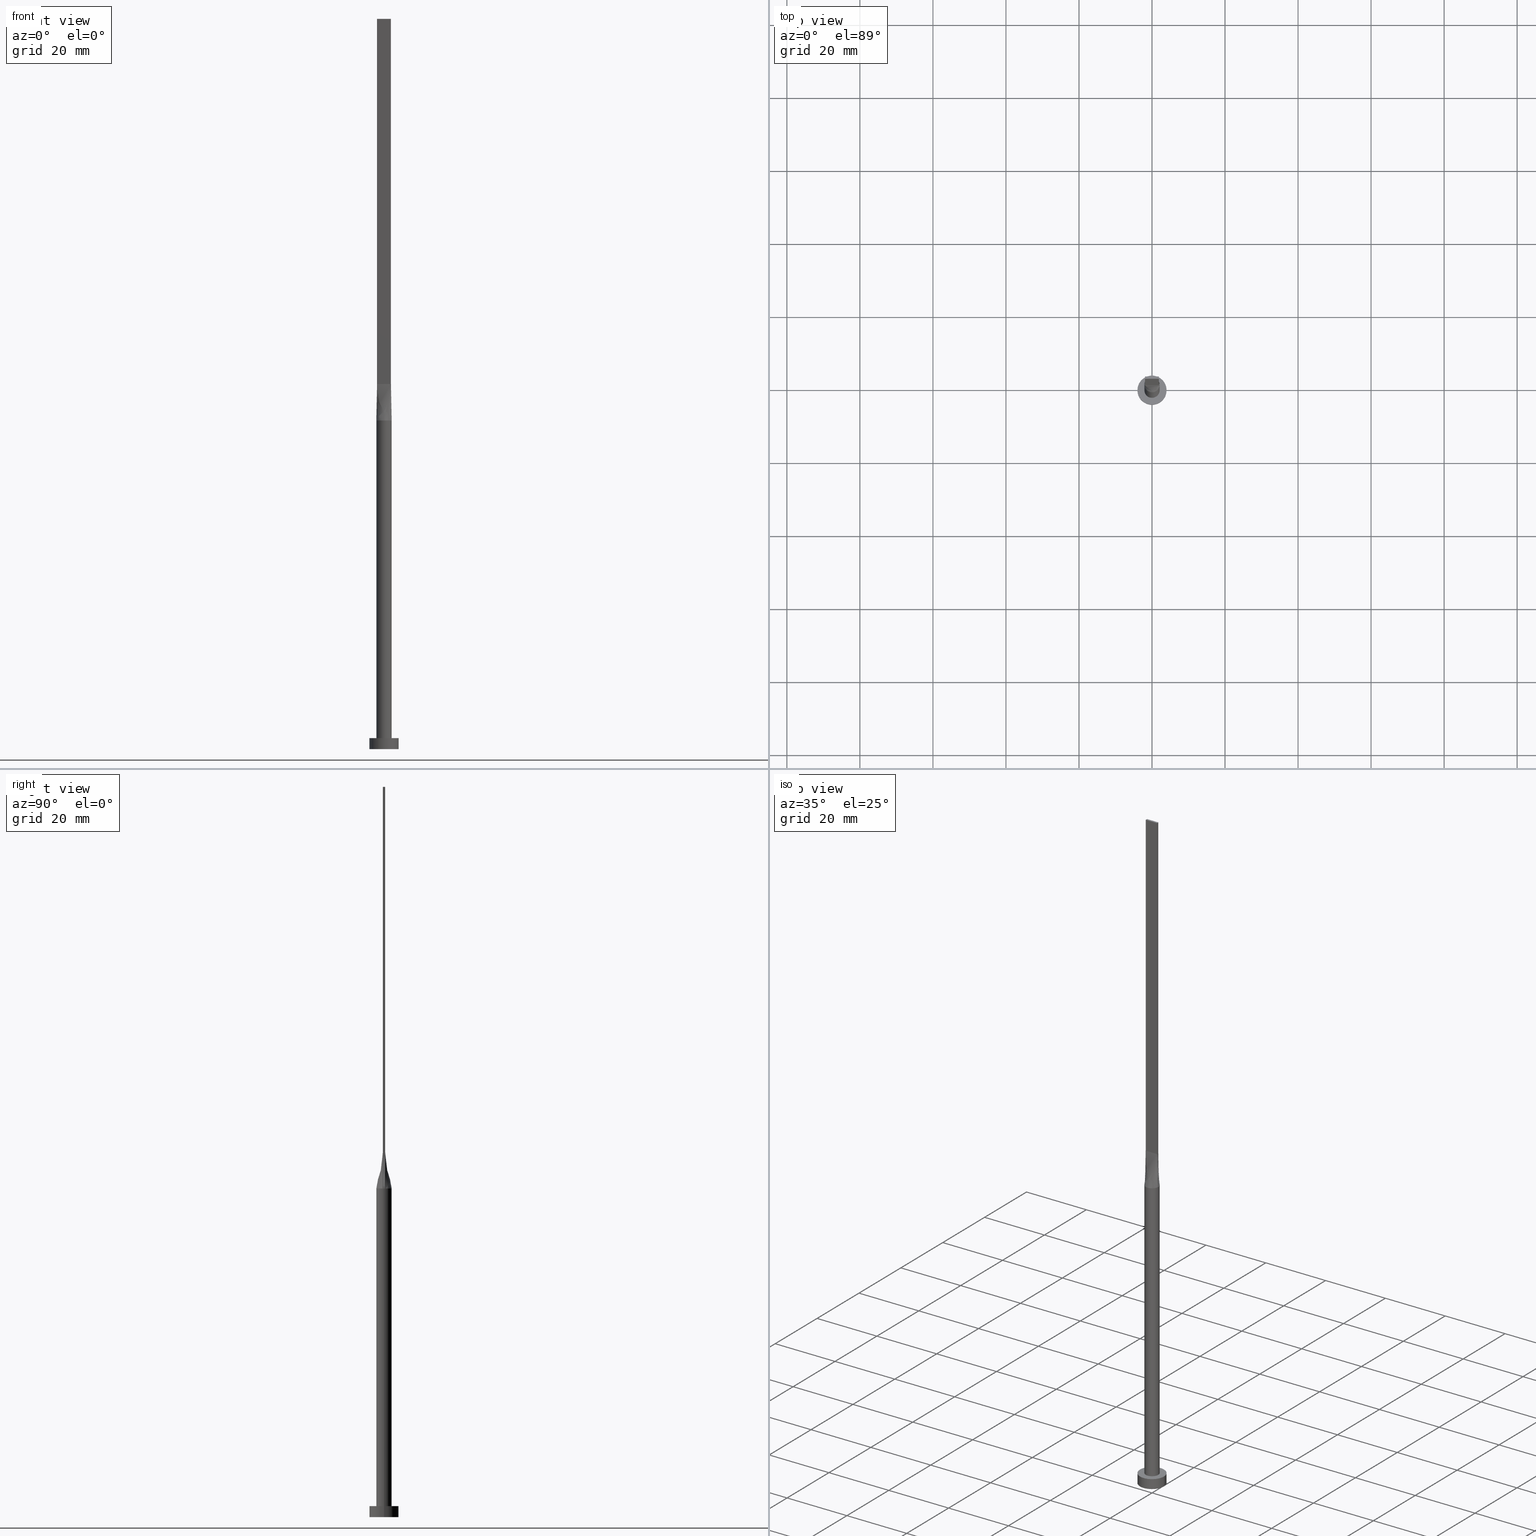
[diagram: canonical four-view strip — front | top / right | iso, engineering-drawing reading convention]
A machine part, canonical four-view strip (front | top / right | iso — engineering-drawing reading convention). The complete STEP part file that produces these views, byte-faithful:
ISO-10303-21;
HEADER;
FILE_DESCRIPTION (( 'STEP AP203' ),
    '1' );
FILE_NAME ('77c5.STEP',
    '2026-02-12T09:04:34',
    ( '' ),
    ( '' ),
    'SwSTEP 2.0',
    'SolidWorks 2019',
    '' );
FILE_SCHEMA (( 'CONFIG_CONTROL_DESIGN' ));
ENDSEC;

DATA;
#1 = ORIENTED_EDGE ( 'NONE', *, *, #242, .F. ) ;
#2 = CARTESIAN_POINT ( 'NONE',  ( 1.819451111325471215, 1.069832718648841885, 89.99999999999994316 ) ) ;
#3 = CARTESIAN_POINT ( 'NONE',  ( 2.074302227191044956, -0.3275214042933231595, 90.00000000000000000 ) ) ;
#4 = DIRECTION ( 'NONE',  ( -1.084202172485504434E-15, -1.000000000000000000, 0.000000000000000000 ) ) ;
#5 = CARTESIAN_POINT ( 'NONE',  ( 1.692271541701912962, -1.268928319070363520, 90.00000000000005684 ) ) ;
#6 = VECTOR ( 'NONE', #418, 1000.000000000000000 ) ;
#7 = ORIENTED_EDGE ( 'NONE', *, *, #17, .T. ) ;
#8 = CARTESIAN_POINT ( 'NONE',  ( -1.996565546919327971, -0.6845950695482642123, 90.00000000000000000 ) ) ;
#9 = B_SPLINE_SURFACE_WITH_KNOTS ( 'NONE', 3, 1, ( 
 ( #416, #59 ),
 ( #321, #230 ),
 ( #103, #378 ),
 ( #511, #192 ),
 ( #147, #317 ),
 ( #154, #563 ) ),
 .UNSPECIFIED., .F., .F., .F.,
 ( 4, 2, 4 ),
 ( 2, 2 ),
 ( 0.000000000000000000, 0.5000000000000000000, 1.000000000000000000 ),
 ( 0.000000000000000000, 1.000000000000000000 ),
 .UNSPECIFIED. ) ;
#10 = EDGE_CURVE ( 'NONE', #175, #480, #168, .T. ) ;
#11 = ORIENTED_EDGE ( 'NONE', *, *, #145, .T. ) ;
#12 = ORIENTED_EDGE ( 'NONE', *, *, #351, .F. ) ;
#13 = ORIENTED_EDGE ( 'NONE', *, *, #504, .F. ) ;
#14 = APPLICATION_PROTOCOL_DEFINITION ( 'international standard', 'config_control_design', 1994, #232 ) ;
#15 = VECTOR ( 'NONE', #236, 1000.000000000000000 ) ;
#16 = CARTESIAN_POINT ( 'NONE',  ( 0.5970064165420508884, 2.033566071616262683, 89.99999999999997158 ) ) ;
#17 = EDGE_CURVE ( 'NONE', #91, #175, #66, .T. ) ;
#18 = DIRECTION ( 'NONE',  ( -0.000000000000000000, -0.000000000000000000, -1.000000000000000000 ) ) ;
#19 = ORIENTED_EDGE ( 'NONE', *, *, #417, .F. ) ;
#20 = DIRECTION ( 'NONE',  ( 1.000000000000000000, 0.000000000000000000, -0.000000000000000000 ) ) ;
#21 = AXIS2_PLACEMENT_3D ( 'NONE', #117, #432, #74 ) ;
#22 = EDGE_CURVE ( 'NONE', #480, #569, #202, .T. ) ;
#23 = FACE_OUTER_BOUND ( 'NONE', #390, .T. ) ;
#24 = CARTESIAN_POINT ( 'NONE',  ( -4.000000000000000000, 0.000000000000000000, 3.000000000000000000 ) ) ;
#25 = ORIENTED_EDGE ( 'NONE', *, *, #234, .F. ) ;
#26 = PERSON_AND_ORGANIZATION ( #55, #421 ) ;
#27 = DIRECTION ( 'NONE',  ( 0.000000000000000000, -0.000000000000000000, -1.000000000000000000 ) ) ;
#28 = CARTESIAN_POINT ( 'NONE',  ( -1.819451111325472326, 1.069832718648841885, 90.00000000000000000 ) ) ;
#29 = CIRCLE ( 'NONE', #355, 2.100000000000000089 ) ;
#30 = PERSON_AND_ORGANIZATION ( #55, #421 ) ;
#31 = ORIENTED_EDGE ( 'NONE', *, *, #357, .T. ) ;
#32 = APPROVAL_DATE_TIME ( #433, #550 ) ;
#33 = UNCERTAINTY_MEASURE_WITH_UNIT (LENGTH_MEASURE( 1.000000000000000082E-05 ), #248, 'distance_accuracy_value', 'NONE');
#34 = DIRECTION ( 'NONE',  ( -0.01742750958084841525, -0.002751712039081281522, 0.9998443428807622935 ) ) ;
#35 = DIRECTION ( 'NONE',  ( -0.000000000000000000, -0.000000000000000000, -1.000000000000000000 ) ) ;
#36 = ORIENTED_EDGE ( 'NONE', *, *, #141, .T. ) ;
#37 = DIRECTION ( 'NONE',  ( -1.000000000000000000, 0.000000000000000000, 0.000000000000000000 ) ) ;
#38 = VECTOR ( 'NONE', #207, 1000.000000000000000 ) ;
#39 = CARTESIAN_POINT ( 'NONE',  ( -1.899999999999999911, -0.2999999999999994893, 200.0000000000000000 ) ) ;
#40 = EDGE_CURVE ( 'NONE', #301, #91, #194, .T. ) ;
#41 = VERTEX_POINT ( 'NONE', #238 ) ;
#42 = CARTESIAN_POINT ( 'NONE',  ( -2.100000000000000089, 0.000000000000000000, 3.000000000000000000 ) ) ;
#43 = CARTESIAN_POINT ( 'NONE',  ( -0.1583333333333324378, -0.2999999999999996003, 99.99999999999997158 ) ) ;
#44 = CARTESIAN_POINT ( 'NONE',  ( 0.000000000000000000, 0.000000000000000000, 90.00000000000000000 ) ) ;
#45 = DIRECTION ( 'NONE',  ( 1.084202172485504434E-15, 1.000000000000000000, 0.000000000000000000 ) ) ;
#46 = EDGE_CURVE ( 'NONE', #509, #480, #290, .T. ) ;
#47 = AXIS2_PLACEMENT_3D ( 'NONE', #510, #102, #553 ) ;
#48 = CARTESIAN_POINT ( 'NONE',  ( -1.996565546919327527, 0.6845950695482648785, 90.00000000000002842 ) ) ;
#49 = CARTESIAN_POINT ( 'NONE',  ( 0.1583333333333341031, -0.2999999999999996003, 99.99999999999997158 ) ) ;
#50 = CARTESIAN_POINT ( 'NONE',  ( -0.2990728642939458615, 2.100000000000000089, 90.00000000000001421 ) ) ;
#51 = ORIENTED_EDGE ( 'NONE', *, *, #302, .F. ) ;
#52 = CARTESIAN_POINT ( 'NONE',  ( -2.047342767731585855, 0.4982646475365663519, 90.00000000000000000 ) ) ;
#53 = CARTESIAN_POINT ( 'NONE',  ( -1.342614810400549308, 1.634425746458370021, 90.00000000000002842 ) ) ;
#54 = CC_DESIGN_PERSON_AND_ORGANIZATION_ASSIGNMENT ( #570, #152, ( #411 ) ) ;
#55 = PERSON ( 'NEUR�EN�', 'NEUR�EN�', 'NEUR�EN�', ('NEUR�EN�'), ('NEUR�EN�'), ('NEUR�EN�') ) ;
#56 = CIRCLE ( 'NONE', #564, 2.100000000000000089 ) ;
#57 = DIRECTION ( 'NONE',  ( 1.000000000000000000, 0.000000000000000000, 0.000000000000000000 ) ) ;
#58 = CC_DESIGN_PERSON_AND_ORGANIZATION_ASSIGNMENT ( #565, #519, ( #118 ) ) ;
#59 = CARTESIAN_POINT ( 'NONE',  ( -1.899999999999999689, 0.3000000000000002109, 99.99999999999998579 ) ) ;
#60 = CARTESIAN_POINT ( 'NONE',  ( 2.100000000000000089, 2.571758278209441957E-16, 3.000000000000000000 ) ) ;
#61 = CARTESIAN_POINT ( 'NONE',  ( 0.2990728642939458615, 2.100000000000000089, 90.00000000000002842 ) ) ;
#62 = COORDINATED_UNIVERSAL_TIME_OFFSET ( 1, 0, .AHEAD. ) ;
#63 = EDGE_CURVE ( 'NONE', #311, #288, #158, .T. ) ;
#64 = ORIENTED_EDGE ( 'NONE', *, *, #488, .T. ) ;
#65 = PERSON_AND_ORGANIZATION ( #55, #421 ) ;
#66 = LINE ( 'NONE', #392, #251 ) ;
#67 = ORIENTED_EDGE ( 'NONE', *, *, #504, .T. ) ;
#68 = CLOSED_SHELL ( 'NONE', ( #470, #446, #435, #187, #372, #191, #404, #131, #335, #513, #520, #278, #482, #268, #533 ) ) ;
#69 = FACE_OUTER_BOUND ( 'NONE', #121, .T. ) ;
#70 = APPLICATION_PROTOCOL_DEFINITION ( 'international standard', 'config_control_design', 1994, #99 ) ;
#71 = ORIENTED_EDGE ( 'NONE', *, *, #210, .T. ) ;
#72 = CARTESIAN_POINT ( 'NONE',  ( 0.000000000000000000, 0.000000000000000000, 90.00000000000000000 ) ) ;
#73 = APPROVAL_STATUS ( 'not_yet_approved' ) ;
#74 = DIRECTION ( 'NONE',  ( -1.000000000000000000, 0.000000000000000000, 0.000000000000000000 ) ) ;
#75 = EDGE_CURVE ( 'NONE', #521, #385, #114, .T. ) ;
#76 = EDGE_LOOP ( 'NONE', ( #499, #184, #426, #305 ) ) ;
#77 = CIRCLE ( 'NONE', #256, 2.100000000000000089 ) ;
#78 = DIRECTION ( 'NONE',  ( 1.000000000000000000, 0.000000000000000000, 0.000000000000000000 ) ) ;
#79 = ORIENTED_EDGE ( 'NONE', *, *, #325, .T. ) ;
#80 = CARTESIAN_POINT ( 'NONE',  ( 0.2990728642939452508, -2.100000000000000533, 90.00000000000002842 ) ) ;
#81 = DIRECTION ( 'NONE',  ( 1.000000000000000000, 0.000000000000000000, 0.000000000000000000 ) ) ;
#82 = EDGE_LOOP ( 'NONE', ( #457, #374, #79, #324 ) ) ;
#83 = EDGE_CURVE ( 'NONE', #115, #480, #430, .T. ) ;
#84 = CARTESIAN_POINT ( 'NONE',  ( 2.074492141291045755, -0.3275508996892426139, 90.00000000000000000 ) ) ;
#85 = ORIENTED_EDGE ( 'NONE', *, *, #257, .F. ) ;
#86 = CARTESIAN_POINT ( 'NONE',  ( -0.3166666666666658192, -0.2999999999999996003, 99.99999999999997158 ) ) ;
#87 = DIRECTION ( 'NONE',  ( 1.000000000000000000, 0.000000000000000000, 0.000000000000000000 ) ) ;
#88 = CARTESIAN_POINT ( 'NONE',  ( 0.2990728642939458615, 2.100000000000000089, 90.00000000000002842 ) ) ;
#89 = CARTESIAN_POINT ( 'NONE',  ( 1.119115561862284114, -1.799829988698610883, 89.99999999999997158 ) ) ;
#90 = CARTESIAN_POINT ( 'NONE',  ( -1.119115561862284558, 1.799829988698611327, 89.99999999999997158 ) ) ;
#91 = VERTEX_POINT ( 'NONE', #436 ) ;
#92 = VERTEX_POINT ( 'NONE', #484 ) ;
#93 = VECTOR ( 'NONE', #208, 1000.000000000000000 ) ;
#94 = CYLINDRICAL_SURFACE ( 'NONE', #512, 2.100000000000000089 ) ;
#95 = AXIS2_PLACEMENT_3D ( 'NONE', #263, #333, #27 ) ;
#96 = PLANE ( 'NONE',  #429 ) ;
#97 = CARTESIAN_POINT ( 'NONE',  ( 2.074471112824316510, 0.3275477247839024275, 90.00000000000000000 ) ) ;
#98 = EDGE_CURVE ( 'NONE', #453, #175, #424, .T. ) ;
#99 = APPLICATION_CONTEXT ( 'configuration controlled 3d designs of mechanical parts and assemblies' ) ;
#100 = DIRECTION ( 'NONE',  ( 0.000000000000000000, 0.000000000000000000, 1.000000000000000000 ) ) ;
#101 = CARTESIAN_POINT ( 'NONE',  ( -1.987151113595522656, -0.3137607021466609636, 95.00000000000000000 ) ) ;
#102 = DIRECTION ( 'NONE',  ( 0.000000000000000000, 0.000000000000000000, 1.000000000000000000 ) ) ;
#103 = CARTESIAN_POINT ( 'NONE',  ( -2.099842767731585624, 0.1098417832277427397, 90.00000000000000000 ) ) ;
#104 = FACE_OUTER_BOUND ( 'NONE', #189, .T. ) ;
#105 = VECTOR ( 'NONE', #45, 1000.000000000000000 ) ;
#106 = COORDINATED_UNIVERSAL_TIME_OFFSET ( 1, 0, .AHEAD. ) ;
#107 = CC_DESIGN_PERSON_AND_ORGANIZATION_ASSIGNMENT ( #26, #119, ( #319 ) ) ;
#108 = ORIENTED_EDGE ( 'NONE', *, *, #234, .T. ) ;
#109 = DIRECTION ( 'NONE',  ( 1.000000000000000000, 0.000000000000000000, -0.000000000000000000 ) ) ;
#110 = CARTESIAN_POINT ( 'NONE',  ( 2.047342767731584967, 0.4982646475365660188, 90.00000000000000000 ) ) ;
#111 = CARTESIAN_POINT ( 'NONE',  ( -2.074476228699557279, 0.3275484103472254827, 90.00000000000000000 ) ) ;
#112 = DIRECTION ( 'NONE',  ( 0.000000000000000000, 0.000000000000000000, 1.000000000000000000 ) ) ;
#113 = PERSON_AND_ORGANIZATION ( #55, #421 ) ;
#114 = LINE ( 'NONE', #39, #406 ) ;
#115 = VERTEX_POINT ( 'NONE', #111 ) ;
#116 = VECTOR ( 'NONE', #35, 1000.000000000000000 ) ;
#117 = CARTESIAN_POINT ( 'NONE',  ( 0.000000000000000000, 0.000000000000000000, 3.000000000000000000 ) ) ;
#118 = PRODUCT_DEFINITION_FORMATION_WITH_SPECIFIED_SOURCE ( 'LIBOVOLN�', '', #342, .NOT_KNOWN. ) ;
#119 = PERSON_AND_ORGANIZATION_ROLE ( 'classification_officer' ) ;
#120 = DIRECTION ( 'NONE',  ( 0.01742750958084841525, -0.002751712039081265042, 0.9998443428807622935 ) ) ;
#121 = EDGE_LOOP ( 'NONE', ( #197, #343, #67, #136, #85, #1 ) ) ;
#122 = CARTESIAN_POINT ( 'NONE',  ( -1.899999999999999911, -0.2999999999999994893, 200.0000000000000000 ) ) ;
#123 = CC_DESIGN_DATE_AND_TIME_ASSIGNMENT ( #345, #246, ( #319 ) ) ;
#124 = ORIENTED_EDGE ( 'NONE', *, *, #561, .T. ) ;
#125 = LINE ( 'NONE', #24, #383 ) ;
#126 = EDGE_LOOP ( 'NONE', ( #487, #261, #182, #284 ) ) ;
#127 = CARTESIAN_POINT ( 'NONE',  ( -1.583333333333333037, -0.2999999999999994893, 99.99999999999998579 ) ) ;
#128 = CARTESIAN_POINT ( 'NONE',  ( 1.342614810400549086, 1.634425746458369799, 90.00000000000001421 ) ) ;
#129 = DIRECTION ( 'NONE',  ( 0.000000000000000000, 0.000000000000000000, 1.000000000000000000 ) ) ;
#130 = AXIS2_PLACEMENT_3D ( 'NONE', #465, #150, #57 ) ;
#131 = ADVANCED_FACE ( 'NONE', ( #276 ), #358, .T. ) ;
#132 = LINE ( 'NONE', #174, #331 ) ;
#133 = ORIENTED_EDGE ( 'NONE', *, *, #10, .F. ) ;
#134 = CARTESIAN_POINT ( 'NONE',  ( 1.819451111325472104, -1.069832718648842107, 90.00000000000000000 ) ) ;
#135 = CARTESIAN_POINT ( 'NONE',  ( 0.7916666666666666297, 0.3000000000000001554, 99.99999999999997158 ) ) ;
#136 = ORIENTED_EDGE ( 'NONE', *, *, #63, .F. ) ;
#137 = DIRECTION ( 'NONE',  ( 0.000000000000000000, 0.000000000000000000, 1.000000000000000000 ) ) ;
#138 = CIRCLE ( 'NONE', #577, 2.100000000000000089 ) ;
#139 = EDGE_LOOP ( 'NONE', ( #538, #466, #7, #398, #502 ) ) ;
#140 = FACE_OUTER_BOUND ( 'NONE', #76, .T. ) ;
#141 = EDGE_CURVE ( 'NONE', #569, #410, #226, .T. ) ;
#142 = EDGE_LOOP ( 'NONE', ( #534, #445, #485, #25, #338, #64 ) ) ;
#143 = VECTOR ( 'NONE', #559, 1000.000000000000114 ) ;
#144 = CARTESIAN_POINT ( 'NONE',  ( 1.899999999999999023, -0.2999999999999997669, 200.0000000000000000 ) ) ;
#145 = EDGE_CURVE ( 'NONE', #316, #41, #233, .T. ) ;
#146 = LOCAL_TIME ( 10, 4, 34.00000000000000000, #206 ) ;
#147 = CARTESIAN_POINT ( 'NONE',  ( -2.091329254218072364, -0.2196835664554846468, 90.00000000000000000 ) ) ;
#148 = ORIENTED_EDGE ( 'NONE', *, *, #22, .F. ) ;
#149 = DIRECTION ( 'NONE',  ( 1.000000000000000000, -7.993605777301127091E-15, 0.000000000000000000 ) ) ;
#150 = DIRECTION ( 'NONE',  ( 0.000000000000000000, 0.000000000000000000, 1.000000000000000000 ) ) ;
#151 = EDGE_CURVE ( 'NONE', #41, #558, #524, .T. ) ;
#152 = PERSON_AND_ORGANIZATION_ROLE ( 'creator' ) ;
#153 = CARTESIAN_POINT ( 'NONE',  ( 4.000000000000000000, 4.898587196589412829E-16, 3.000000000000000000 ) ) ;
#154 = CARTESIAN_POINT ( 'NONE',  ( -2.074302227191044956, -0.3275214042933223824, 90.00000000000000000 ) ) ;
#155 = CIRCLE ( 'NONE', #218, 4.000000000000000000 ) ;
#156 = APPROVAL_DATE_TIME ( #562, #422 ) ;
#157 = DIRECTION ( 'NONE',  ( 0.000000000000000000, 0.000000000000000000, 1.000000000000000000 ) ) ;
#158 = LINE ( 'NONE', #247, #468 ) ;
#159 = ORIENTED_EDGE ( 'NONE', *, *, #141, .F. ) ;
#160 = DIRECTION ( 'NONE',  ( -0.000000000000000000, -0.000000000000000000, -1.000000000000000000 ) ) ;
#161 = CALENDAR_DATE ( 2026, 12, 2 ) ;
#162 = CARTESIAN_POINT ( 'NONE',  ( -1.899999999999999911, -0.2999999999999994893, 200.0000000000000000 ) ) ;
#163 = ORIENTED_EDGE ( 'NONE', *, *, #210, .F. ) ;
#164 = CARTESIAN_POINT ( 'NONE',  ( -1.899999999999999911, -0.2999999999999994893, 99.99999999999998579 ) ) ;
#165 = FACE_OUTER_BOUND ( 'NONE', #476, .T. ) ;
#166 = CALENDAR_DATE ( 2026, 12, 2 ) ;
#167 =( NAMED_UNIT ( * ) SI_UNIT ( $, .STERADIAN. ) SOLID_ANGLE_UNIT ( ) );
#168 = LINE ( 'NONE', #530, #38 ) ;
#169 = CC_DESIGN_PERSON_AND_ORGANIZATION_ASSIGNMENT ( #243, #514, ( #342 ) ) ;
#170 = AXIS2_PLACEMENT_3D ( 'NONE', #375, #193, #149 ) ;
#171 = CC_DESIGN_APPROVAL ( #550, ( #411 ) ) ;
#172 = CARTESIAN_POINT ( 'NONE',  ( 2.091329254218072364, -0.2196835664554854239, 90.00000000000000000 ) ) ;
#173 = CARTESIAN_POINT ( 'NONE',  ( 0.000000000000000000, 0.000000000000000000, 3.000000000000000000 ) ) ;
#174 = CARTESIAN_POINT ( 'NONE',  ( -1.899999999999999689, 0.3000000000000002109, 200.0000000000000000 ) ) ;
#175 = VERTEX_POINT ( 'NONE', #303 ) ;
#176 = CARTESIAN_POINT ( 'NONE',  ( 1.692271541701912296, 1.268928319070362187, 89.99999999999998579 ) ) ;
#177 = DIRECTION ( 'NONE',  ( 3.614007241618350250E-16, 1.000000000000000000, 0.000000000000000000 ) ) ;
#178 = EDGE_LOOP ( 'NONE', ( #579, #255, #163, #267 ) ) ;
#179 = CARTESIAN_POINT ( 'NONE',  ( 1.108333333333332948, -0.2999999999999996558, 99.99999999999998579 ) ) ;
#180 = APPROVAL_PERSON_ORGANIZATION ( #65, #214, #329 ) ;
#181 = PLANE ( 'NONE',  #414 ) ;
#182 = ORIENTED_EDGE ( 'NONE', *, *, #249, .F. ) ;
#183 = CARTESIAN_POINT ( 'NONE',  ( 1.583333333333333037, 0.3000000000000002109, 99.99999999999997158 ) ) ;
#184 = ORIENTED_EDGE ( 'NONE', *, *, #46, .F. ) ;
#185 = CARTESIAN_POINT ( 'NONE',  ( -1.108333333333333171, 0.3000000000000002109, 99.99999999999997158 ) ) ;
#186 = CARTESIAN_POINT ( 'NONE',  ( -1.741666666666666474, 0.3000000000000002109, 99.99999999999998579 ) ) ;
#187 = ADVANCED_FACE ( 'NONE', ( #403, #220 ), #356, .T. ) ;
#188 = AXIS2_PLACEMENT_3D ( 'NONE', #173, #160, #37 ) ;
#189 = EDGE_LOOP ( 'NONE', ( #576, #292, #133, #547 ) ) ;
#190 = CARTESIAN_POINT ( 'NONE',  ( 0.000000000000000000, 0.000000000000000000, 0.000000000000000000 ) ) ;
#191 = ADVANCED_FACE ( 'NONE', ( #307 ), #94, .T. ) ;
#192 = CARTESIAN_POINT ( 'NONE',  ( -1.899999999999999689, -0.09999999999999924227, 99.99999999999997158 ) ) ;
#193 = DIRECTION ( 'NONE',  ( 0.000000000000000000, 0.000000000000000000, 1.000000000000000000 ) ) ;
#194 = CIRCLE ( 'NONE', #496, 2.100000000000000089 ) ;
#195 = LOCAL_TIME ( 10, 4, 34.00000000000000000, #106 ) ;
#196 = LINE ( 'NONE', #225, #555 ) ;
#197 = ORIENTED_EDGE ( 'NONE', *, *, #40, .F. ) ;
#198 = DIRECTION ( 'NONE',  ( 0.000000000000000000, 0.000000000000000000, 1.000000000000000000 ) ) ;
#199 = PERSON_AND_ORGANIZATION ( #55, #421 ) ;
#200 = FACE_OUTER_BOUND ( 'NONE', #294, .T. ) ;
#201 = DIRECTION ( 'NONE',  ( -1.000000000000000000, 0.000000000000000000, 0.000000000000000000 ) ) ;
#202 = LINE ( 'NONE', #341, #15 ) ;
#203 = AXIS2_PLACEMENT_3D ( 'NONE', #382, #567, #229 ) ;
#204 = CARTESIAN_POINT ( 'NONE',  ( -1.996565546919327527, 0.6845950695482648785, 90.00000000000002842 ) ) ;
#205 = VERTEX_POINT ( 'NONE', #215 ) ;
#206 = COORDINATED_UNIVERSAL_TIME_OFFSET ( 1, 0, .AHEAD. ) ;
#207 = DIRECTION ( 'NONE',  ( -1.000000000000000000, -0.000000000000000000, -0.000000000000000000 ) ) ;
#208 = DIRECTION ( 'NONE',  ( -0.000000000000000000, -0.000000000000000000, -1.000000000000000000 ) ) ;
#209 = SECURITY_CLASSIFICATION_LEVEL ( 'unclassified' ) ;
#210 = EDGE_CURVE ( 'NONE', #385, #453, #554, .T. ) ;
#211 = CARTESIAN_POINT ( 'NONE',  ( 2.099842767731585624, 0.1098417832277423373, 90.00000000000000000 ) ) ;
#212 = DIRECTION ( 'NONE',  ( -0.000000000000000000, -0.000000000000000000, -1.000000000000000000 ) ) ;
#213 = CARTESIAN_POINT ( 'NONE',  ( 1.899999999999999689, 0.3000000000000002109, 200.0000000000000000 ) ) ;
#214 = APPROVAL ( #483, 'NEUR�EN�' ) ;
#215 = CARTESIAN_POINT ( 'NONE',  ( 1.899999999999999023, -0.2999999999999997669, 99.99999999999998579 ) ) ;
#216 = CARTESIAN_POINT ( 'NONE',  ( 2.099921383865792635, 5.174786140116233847E-16, 90.00000000000000000 ) ) ;
#217 = DIRECTION ( 'NONE',  ( -3.614007241618350250E-16, -1.000000000000000000, 0.000000000000000000 ) ) ;
#218 = AXIS2_PLACEMENT_3D ( 'NONE', #190, #198, #560 ) ;
#219 = CARTESIAN_POINT ( 'NONE',  ( -1.741666666666666474, -0.2999999999999994893, 99.99999999999998579 ) ) ;
#220 = FACE_OUTER_BOUND ( 'NONE', #271, .T. ) ;
#221 = CC_DESIGN_DATE_AND_TIME_ASSIGNMENT ( #340, #235, ( #411 ) ) ;
#222 = CARTESIAN_POINT ( 'NONE',  ( -0.7916666666666664076, 0.3000000000000002109, 99.99999999999998579 ) ) ;
#223 = EDGE_LOOP ( 'NONE', ( #12, #527 ) ) ;
#224 = VECTOR ( 'NONE', #120, 1000.000000000000114 ) ;
#225 = CARTESIAN_POINT ( 'NONE',  ( 1.899999999999999689, 0.3000000000000002109, 99.99999999999998579 ) ) ;
#226 = LINE ( 'NONE', #101, #143 ) ;
#227 = LINE ( 'NONE', #366, #6 ) ;
#228 = DESIGN_CONTEXT ( 'detailed design', #99, 'design' ) ;
#229 = DIRECTION ( 'NONE',  ( -1.000000000000000000, 7.132909029509899409E-17, 0.000000000000000000 ) ) ;
#230 = CARTESIAN_POINT ( 'NONE',  ( -1.899999999999999467, 0.2000000000000004552, 99.99999999999997158 ) ) ;
#231 = B_SPLINE_CURVE_WITH_KNOTS ( 'NONE', 3,
 ( #97, #400, #492, #2, #176, #128, #296, #471, #61, #515, #274, #240, #431, #425, #28, #204, #337, #297 ),
 .UNSPECIFIED., .F., .F.,
 ( 4, 2, 2, 2, 2, 2, 2, 2, 4 ),
 ( 0.000000000000000000, 0.1249999999999999722, 0.2500000000000000000, 0.3750000000000000000, 0.5000000000000000000, 0.6250000000000000000, 0.7500000000000000000, 0.8750000000000000000, 1.000000000000000000 ),
 .UNSPECIFIED. ) ;
#232 = APPLICATION_CONTEXT ( 'configuration controlled 3d designs of mechanical parts and assemblies' ) ;
#233 = LINE ( 'NONE', #153, #479 ) ;
#234 = EDGE_CURVE ( 'NONE', #311, #410, #56, .T. ) ;
#235 = DATE_TIME_ROLE ( 'creation_date' ) ;
#236 = DIRECTION ( 'NONE',  ( -3.614007241618350250E-16, -1.000000000000000000, 0.000000000000000000 ) ) ;
#237 = CARTESIAN_POINT ( 'NONE',  ( -1.899999999999999689, 0.3000000000000002109, 99.99999999999998579 ) ) ;
#238 = CARTESIAN_POINT ( 'NONE',  ( 4.000000000000000000, 4.898587196589412829E-16, 0.000000000000000000 ) ) ;
#239 = APPROVAL_PERSON_ORGANIZATION ( #30, #550, #478 ) ;
#240 = CARTESIAN_POINT ( 'NONE',  ( -1.119115561862284558, 1.799829988698611327, 89.99999999999997158 ) ) ;
#241 = CARTESIAN_POINT ( 'NONE',  ( 1.996565546919328415, -0.6845950695482654336, 90.00000000000001421 ) ) ;
#242 = EDGE_CURVE ( 'NONE', #91, #115, #231, .T. ) ;
#243 = PERSON_AND_ORGANIZATION ( #55, #421 ) ;
#244 = CARTESIAN_POINT ( 'NONE',  ( 2.099842767731585624, -0.1098417832277428230, 90.00000000000000000 ) ) ;
#245 = DIRECTION ( 'NONE',  ( -0.000000000000000000, -0.000000000000000000, -1.000000000000000000 ) ) ;
#246 = DATE_TIME_ROLE ( 'classification_date' ) ;
#247 = CARTESIAN_POINT ( 'NONE',  ( -2.100000000000000089, 0.000000000000000000, 90.00000000000000000 ) ) ;
#248 =( LENGTH_UNIT ( ) NAMED_UNIT ( * ) SI_UNIT ( .MILLI., .METRE. ) );
#249 = EDGE_CURVE ( 'NONE', #509, #521, #132, .T. ) ;
#250 = EDGE_LOOP ( 'NONE', ( #419, #108, #159, #148, #262 ) ) ;
#251 = VECTOR ( 'NONE', #34, 1000.000000000000114 ) ;
#252 = CARTESIAN_POINT ( 'NONE',  ( 1.899999999999999023, -0.2999999999999997669, 200.0000000000000000 ) ) ;
#253 = CARTESIAN_POINT ( 'NONE',  ( -1.819451111325472326, 1.069832718648841885, 90.00000000000000000 ) ) ;
#254 = CARTESIAN_POINT ( 'NONE',  ( 0.1583333333333335480, 0.3000000000000001554, 99.99999999999997158 ) ) ;
#255 = ORIENTED_EDGE ( 'NONE', *, *, #98, .F. ) ;
#256 = AXIS2_PLACEMENT_3D ( 'NONE', #44, #359, #78 ) ;
#257 = EDGE_CURVE ( 'NONE', #115, #311, #77, .T. ) ;
#258 = CC_DESIGN_SECURITY_CLASSIFICATION ( #319, ( #118 ) ) ;
#259 = CARTESIAN_POINT ( 'NONE',  ( 1.342614810400548864, -1.634425746458370021, 90.00000000000001421 ) ) ;
#260 = CARTESIAN_POINT ( 'NONE',  ( 0.3166666666666668184, 0.3000000000000001554, 99.99999999999997158 ) ) ;
#261 = ORIENTED_EDGE ( 'NONE', *, *, #561, .F. ) ;
#262 = ORIENTED_EDGE ( 'NONE', *, *, #83, .F. ) ;
#263 = CARTESIAN_POINT ( 'NONE',  ( 1.899999999999999689, 0.3000000000000002109, 200.0000000000000000 ) ) ;
#264 = ORIENTED_EDGE ( 'NONE', *, *, #75, .T. ) ;
#265 = AXIS2_PLACEMENT_3D ( 'NONE', #72, #245, #201 ) ;
#266 = DIRECTION ( 'NONE',  ( 1.000000000000000000, 0.000000000000000000, 0.000000000000000000 ) ) ;
#267 = ORIENTED_EDGE ( 'NONE', *, *, #544, .T. ) ;
#268 = ADVANCED_FACE ( 'NONE', ( #405 ), #181, .F. ) ;
#269 = CARTESIAN_POINT ( 'NONE',  ( 2.074302227191044956, 0.3275214042933228820, 90.00000000000000000 ) ) ;
#270 = AXIS2_PLACEMENT_3D ( 'NONE', #452, #137, #87 ) ;
#271 = EDGE_LOOP ( 'NONE', ( #31, #309 ) ) ;
#272 = CALENDAR_DATE ( 2026, 12, 2 ) ;
#273 = ADVANCED_BREP_SHAPE_REPRESENTATION ( '77c5', ( #287, #47 ), #505 ) ;
#274 = CARTESIAN_POINT ( 'NONE',  ( -0.5970064165420507774, 2.033566071616263127, 89.99999999999997158 ) ) ;
#275 = PLANE ( 'NONE',  #203 ) ;
#276 = FACE_OUTER_BOUND ( 'NONE', #139, .T. ) ;
#277 = PRODUCT_DEFINITION_SHAPE ( 'NONE', 'NONE',  #411 ) ;
#278 = ADVANCED_FACE ( 'NONE', ( #539 ), #352, .F. ) ;
#279 = ORIENTED_EDGE ( 'NONE', *, *, #302, .T. ) ;
#280 = DIRECTION ( 'NONE',  ( -0.01742750958084848464, 0.002751712039081373896, 0.9998443428807622935 ) ) ;
#281 = CARTESIAN_POINT ( 'NONE',  ( 1.899999999999999689, -0.1999999999999997613, 99.99999999999997158 ) ) ;
#282 = VECTOR ( 'NONE', #531, 1000.000000000000000 ) ;
#283 = LOCAL_TIME ( 10, 4, 34.00000000000000000, #286 ) ;
#284 = ORIENTED_EDGE ( 'NONE', *, *, #46, .T. ) ;
#285 = CARTESIAN_POINT ( 'NONE',  ( 0.000000000000000000, 0.000000000000000000, 90.00000000000000000 ) ) ;
#286 = COORDINATED_UNIVERSAL_TIME_OFFSET ( 1, 0, .AHEAD. ) ;
#287 = MANIFOLD_SOLID_BREP ( 'P�idat vysunut�m5', #68 ) ;
#288 = VERTEX_POINT ( 'NONE', #42 ) ;
#289 = FACE_OUTER_BOUND ( 'NONE', #82, .T. ) ;
#290 = LINE ( 'NONE', #578, #449 ) ;
#291 = CARTESIAN_POINT ( 'NONE',  ( 4.000000000000000000, 4.898587196589412829E-16, 3.000000000000000000 ) ) ;
#292 = ORIENTED_EDGE ( 'NONE', *, *, #83, .T. ) ;
#293 = CARTESIAN_POINT ( 'NONE',  ( 1.987151113595522212, -0.3137607021466614632, 95.00000000000000000 ) ) ;
#294 = EDGE_LOOP ( 'NONE', ( #353, #543, #264, #71 ) ) ;
#295 = CARTESIAN_POINT ( 'NONE',  ( -1.819451111325472548, -1.069832718648841663, 90.00000000000001421 ) ) ;
#296 = CARTESIAN_POINT ( 'NONE',  ( 1.119115561862284558, 1.799829988698611105, 89.99999999999997158 ) ) ;
#297 = CARTESIAN_POINT ( 'NONE',  ( -2.074476228699557279, 0.3275484103472254827, 90.00000000000000000 ) ) ;
#298 = VERTEX_POINT ( 'NONE', #84 ) ;
#299 = CARTESIAN_POINT ( 'NONE',  ( -1.119115561862284558, -1.799829988698610439, 89.99999999999997158 ) ) ;
#300 = DIRECTION ( 'NONE',  ( 1.000000000000000000, -3.614007241618350250E-16, 0.000000000000000000 ) ) ;
#301 = VERTEX_POINT ( 'NONE', #216 ) ;
#302 = EDGE_CURVE ( 'NONE', #569, #205, #401, .T. ) ;
#303 = CARTESIAN_POINT ( 'NONE',  ( 1.899999999999999689, 0.3000000000000002109, 99.99999999999998579 ) ) ;
#304 = CARTESIAN_POINT ( 'NONE',  ( 0.6333333333333334147, 0.3000000000000001554, 99.99999999999997158 ) ) ;
#305 = ORIENTED_EDGE ( 'NONE', *, *, #98, .T. ) ;
#306 = CARTESIAN_POINT ( 'NONE',  ( -1.108333333333332948, -0.2999999999999994893, 99.99999999999997158 ) ) ;
#307 = FACE_OUTER_BOUND ( 'NONE', #142, .T. ) ;
#308 = CARTESIAN_POINT ( 'NONE',  ( -0.3166666666666663743, 0.3000000000000001554, 99.99999999999997158 ) ) ;
#309 = ORIENTED_EDGE ( 'NONE', *, *, #417, .T. ) ;
#310 = AXIS2_PLACEMENT_3D ( 'NONE', #566, #157, #109 ) ;
#311 = VERTEX_POINT ( 'NONE', #440 ) ;
#312 = PLANE ( 'NONE',  #95 ) ;
#313 = ORIENTED_EDGE ( 'NONE', *, *, #488, .F. ) ;
#314 = PRODUCT_RELATED_PRODUCT_CATEGORY ( 'detail', '', ( #342 ) ) ;
#315 = CARTESIAN_POINT ( 'NONE',  ( 2.100000000000000089, 2.571758278209441957E-16, 90.00000000000000000 ) ) ;
#316 = VERTEX_POINT ( 'NONE', #291 ) ;
#317 = CARTESIAN_POINT ( 'NONE',  ( -1.899999999999999689, -0.1999999999999992895, 99.99999999999997158 ) ) ;
#318 = AXIS2_PLACEMENT_3D ( 'NONE', #285, #112, #477 ) ;
#319 = SECURITY_CLASSIFICATION ( '', '', #209 ) ;
#320 = DIRECTION ( 'NONE',  ( 0.000000000000000000, 0.000000000000000000, 1.000000000000000000 ) ) ;
#321 = CARTESIAN_POINT ( 'NONE',  ( -2.091329254218072364, 0.2196835664554852019, 90.00000000000000000 ) ) ;
#322 = CARTESIAN_POINT ( 'NONE',  ( 0.000000000000000000, 0.000000000000000000, 3.000000000000000000 ) ) ;
#323 = CARTESIAN_POINT ( 'NONE',  ( 1.899999999999999023, -0.2999999999999997669, 200.0000000000000000 ) ) ;
#324 = ORIENTED_EDGE ( 'NONE', *, *, #351, .T. ) ;
#325 = EDGE_CURVE ( 'NONE', #92, #558, #125, .T. ) ;
#326 = CARTESIAN_POINT ( 'NONE',  ( -1.899999999999999689, 0.3000000000000002109, 200.0000000000000000 ) ) ;
#327 = DIRECTION ( 'NONE',  ( -0.000000000000000000, -0.000000000000000000, -1.000000000000000000 ) ) ;
#328 = VERTEX_POINT ( 'NONE', #60 ) ;
#329 = APPROVAL_ROLE ( '' ) ;
#330 = DIRECTION ( 'NONE',  ( 1.000000000000000000, 0.000000000000000000, 0.000000000000000000 ) ) ;
#331 = VECTOR ( 'NONE', #217, 1000.000000000000000 ) ;
#332 = SHAPE_DEFINITION_REPRESENTATION ( #277, #273 ) ;
#333 = DIRECTION ( 'NONE',  ( 0.000000000000000000, -1.000000000000000000, 0.000000000000000000 ) ) ;
#334 = CARTESIAN_POINT ( 'NONE',  ( 0.000000000000000000, 0.000000000000000000, 3.000000000000000000 ) ) ;
#335 = ADVANCED_FACE ( 'NONE', ( #467 ), #9, .T. ) ;
#336 = CARTESIAN_POINT ( 'NONE',  ( -1.987151113595522212, 0.3137607021466613522, 95.00000000000000000 ) ) ;
#337 = CARTESIAN_POINT ( 'NONE',  ( -2.047342767731585855, 0.4982646475365663519, 90.00000000000000000 ) ) ;
#338 = ORIENTED_EDGE ( 'NONE', *, *, #63, .T. ) ;
#339 = CYLINDRICAL_SURFACE ( 'NONE', #21, 4.000000000000000000 ) ;
#340 = DATE_AND_TIME ( #161, #370 ) ;
#341 = CARTESIAN_POINT ( 'NONE',  ( -1.899999999999999689, 0.3000000000000002109, 99.99999999999998579 ) ) ;
#342 = PRODUCT ( '77c5', '77c5', '', ( #551 ) ) ;
#343 = ORIENTED_EDGE ( 'NONE', *, *, #394, .T. ) ;
#344 = DIRECTION ( 'NONE',  ( 1.000000000000000000, 0.000000000000000000, 0.000000000000000000 ) ) ;
#345 = DATE_AND_TIME ( #166, #195 ) ;
#346 = DIRECTION ( 'NONE',  ( 1.000000000000000000, 0.000000000000000000, 0.000000000000000000 ) ) ;
#347 = CIRCLE ( 'NONE', #489, 4.000000000000000000 ) ;
#348 = LOCAL_TIME ( 10, 4, 34.00000000000000000, #62 ) ;
#349 = CARTESIAN_POINT ( 'NONE',  ( 1.899999999999999023, -0.2999999999999997669, 200.0000000000000000 ) ) ;
#350 = LINE ( 'NONE', #293, #369 ) ;
#351 = EDGE_CURVE ( 'NONE', #558, #41, #155, .T. ) ;
#352 = PLANE ( 'NONE',  #439 ) ;
#353 = ORIENTED_EDGE ( 'NONE', *, *, #364, .T. ) ;
#354 = CARTESIAN_POINT ( 'NONE',  ( 0.6333333333333335258, -0.2999999999999996003, 99.99999999999997158 ) ) ;
#355 = AXIS2_PLACEMENT_3D ( 'NONE', #322, #100, #330 ) ;
#356 = PLANE ( 'NONE',  #365 ) ;
#357 = EDGE_CURVE ( 'NONE', #92, #316, #548, .T. ) ;
#358 = B_SPLINE_SURFACE_WITH_KNOTS ( 'NONE', 3, 1, ( 
 ( #389, #571 ),
 ( #172, #281 ),
 ( #244, #434 ),
 ( #211, #526 ),
 ( #388, #371 ),
 ( #464, #556 ) ),
 .UNSPECIFIED., .F., .F., .F.,
 ( 4, 2, 4 ),
 ( 2, 2 ),
 ( 0.000000000000000000, 0.5000000000000000000, 1.000000000000000000 ),
 ( 0.000000000000000000, 1.000000000000000000 ),
 .UNSPECIFIED. ) ;
#359 = DIRECTION ( 'NONE',  ( 0.000000000000000000, 0.000000000000000000, 1.000000000000000000 ) ) ;
#360 = CARTESIAN_POINT ( 'NONE',  ( -0.5970064165420509994, -2.033566071616262239, 90.00000000000001421 ) ) ;
#361 = CARTESIAN_POINT ( 'NONE',  ( -0.1583333333333330761, 0.3000000000000001554, 99.99999999999997158 ) ) ;
#362 = CARTESIAN_POINT ( 'NONE',  ( -2.074302227191044956, 0.3275214042933224934, 90.00000000000000000 ) ) ;
#363 = DIRECTION ( 'NONE',  ( -0.000000000000000000, -0.000000000000000000, -1.000000000000000000 ) ) ;
#364 = EDGE_CURVE ( 'NONE', #453, #509, #227, .T. ) ;
#365 = AXIS2_PLACEMENT_3D ( 'NONE', #448, #460, #507 ) ;
#366 = CARTESIAN_POINT ( 'NONE',  ( 1.899999999999999689, 0.3000000000000002109, 200.0000000000000000 ) ) ;
#367 = FACE_OUTER_BOUND ( 'NONE', #472, .T. ) ;
#368 = DIRECTION ( 'NONE',  ( -1.000000000000000000, 0.000000000000000000, 0.000000000000000000 ) ) ;
#369 = VECTOR ( 'NONE', #280, 1000.000000000000114 ) ;
#370 = LOCAL_TIME ( 10, 4, 34.00000000000000000, #391 ) ;
#371 = CARTESIAN_POINT ( 'NONE',  ( 1.899999999999999467, 0.2000000000000002054, 99.99999999999997158 ) ) ;
#372 = ADVANCED_FACE ( 'NONE', ( #552 ), #96, .F. ) ;
#373 = DIRECTION ( 'NONE',  ( -3.614007241618348278E-16, 1.000000000000000000, -0.000000000000000000 ) ) ;
#374 = ORIENTED_EDGE ( 'NONE', *, *, #357, .F. ) ;
#375 = CARTESIAN_POINT ( 'NONE',  ( 0.000000000000000000, 0.000000000000000000, 90.00000000000000000 ) ) ;
#376 = APPROVAL_ROLE ( '' ) ;
#377 = DIRECTION ( 'NONE',  ( 0.000000000000000000, 0.000000000000000000, 1.000000000000000000 ) ) ;
#378 = CARTESIAN_POINT ( 'NONE',  ( -1.899999999999999467, 0.1000000000000006162, 99.99999999999997158 ) ) ;
#379 = EDGE_CURVE ( 'NONE', #205, #175, #196, .T. ) ;
#380 = CALENDAR_DATE ( 2026, 12, 2 ) ;
#381 = PLANE ( 'NONE',  #310 ) ;
#382 = CARTESIAN_POINT ( 'NONE',  ( -1.899999999999999911, -0.2999999999999994893, 200.0000000000000000 ) ) ;
#383 = VECTOR ( 'NONE', #327, 1000.000000000000000 ) ;
#384 = CARTESIAN_POINT ( 'NONE',  ( 0.000000000000000000, 0.000000000000000000, 90.00000000000000000 ) ) ;
#385 = VERTEX_POINT ( 'NONE', #323 ) ;
#386 = CALENDAR_DATE ( 2026, 12, 2 ) ;
#387 = LINE ( 'NONE', #349, #93 ) ;
#388 = CARTESIAN_POINT ( 'NONE',  ( 2.091329254218072364, 0.2196835664554849243, 90.00000000000000000 ) ) ;
#389 = CARTESIAN_POINT ( 'NONE',  ( 2.074302227191044956, -0.3275214042933231595, 90.00000000000000000 ) ) ;
#390 = EDGE_LOOP ( 'NONE', ( #279, #540, #441, #124 ) ) ;
#391 = COORDINATED_UNIVERSAL_TIME_OFFSET ( 1, 0, .AHEAD. ) ;
#392 = CARTESIAN_POINT ( 'NONE',  ( 1.987151113595522212, 0.3137607021466614077, 95.00000000000000000 ) ) ;
#393 = ORIENTED_EDGE ( 'NONE', *, *, #325, .F. ) ;
#394 = EDGE_CURVE ( 'NONE', #301, #328, #508, .T. ) ;
#395 = CARTESIAN_POINT ( 'NONE',  ( -1.899999999999999911, -0.2999999999999994893, 99.99999999999998579 ) ) ;
#396 = ORIENTED_EDGE ( 'NONE', *, *, #456, .T. ) ;
#397 = CARTESIAN_POINT ( 'NONE',  ( 1.899999999999999023, -0.2999999999999997669, 99.99999999999998579 ) ) ;
#398 = ORIENTED_EDGE ( 'NONE', *, *, #379, .F. ) ;
#399 = CARTESIAN_POINT ( 'NONE',  ( -1.266666666666666385, -0.2999999999999994893, 99.99999999999997158 ) ) ;
#400 = CARTESIAN_POINT ( 'NONE',  ( 2.047342767731584967, 0.4982646475365660188, 90.00000000000000000 ) ) ;
#401 = LINE ( 'NONE', #395, #282 ) ;
#402 = CARTESIAN_POINT ( 'NONE',  ( 0.7916666666666667407, -0.2999999999999996003, 99.99999999999998579 ) ) ;
#403 = FACE_BOUND ( 'NONE', #490, .T. ) ;
#404 = ADVANCED_FACE ( 'NONE', ( #367 ), #494, .T. ) ;
#405 = FACE_OUTER_BOUND ( 'NONE', #178, .T. ) ;
#406 = VECTOR ( 'NONE', #475, 1000.000000000000000 ) ;
#407 = CARTESIAN_POINT ( 'NONE',  ( -2.047342767731585411, -0.4982646475365654637, 90.00000000000002842 ) ) ;
#408 = CARTESIAN_POINT ( 'NONE',  ( 0.5970064165420505553, -2.033566071616262683, 89.99999999999998579 ) ) ;
#409 = CARTESIAN_POINT ( 'NONE',  ( -1.692271541701912296, 1.268928319070362631, 90.00000000000001421 ) ) ;
#410 = VERTEX_POINT ( 'NONE', #437 ) ;
#411 = PRODUCT_DEFINITION ( 'NEZN�M�', '', #118, #228 ) ;
#412 = CARTESIAN_POINT ( 'NONE',  ( 1.266666666666666385, 0.3000000000000002109, 99.99999999999997158 ) ) ;
#413 = ORIENTED_EDGE ( 'NONE', *, *, #151, .T. ) ;
#414 = AXIS2_PLACEMENT_3D ( 'NONE', #252, #444, #4 ) ;
#415 = CARTESIAN_POINT ( 'NONE',  ( 0.000000000000000000, 0.000000000000000000, 90.00000000000000000 ) ) ;
#416 = CARTESIAN_POINT ( 'NONE',  ( -2.074302227191044956, 0.3275214042933229375, 90.00000000000000000 ) ) ;
#417 = EDGE_CURVE ( 'NONE', #316, #92, #347, .T. ) ;
#418 = DIRECTION ( 'NONE',  ( -1.000000000000000000, 0.000000000000000000, 0.000000000000000000 ) ) ;
#419 = ORIENTED_EDGE ( 'NONE', *, *, #257, .T. ) ;
#420 = CIRCLE ( 'NONE', #170, 2.100000000000000089 ) ;
#421 = ORGANIZATION ( 'NEUR�EN�', 'NEUR�EN�', '' ) ;
#422 = APPROVAL ( #73, 'NEUR�EN�' ) ;
#423 = DATE_AND_TIME ( #380, #348 ) ;
#424 = LINE ( 'NONE', #516, #116 ) ;
#425 = CARTESIAN_POINT ( 'NONE',  ( -1.692271541701912296, 1.268928319070362631, 90.00000000000001421 ) ) ;
#426 = ORIENTED_EDGE ( 'NONE', *, *, #364, .F. ) ;
#427 = VECTOR ( 'NONE', #522, 1000.000000000000000 ) ;
#428 = CARTESIAN_POINT ( 'NONE',  ( 1.996565546919327527, 0.6845950695482651005, 90.00000000000001421 ) ) ;
#429 = AXIS2_PLACEMENT_3D ( 'NONE', #461, #557, #20 ) ;
#430 = LINE ( 'NONE', #336, #224 ) ;
#431 = CARTESIAN_POINT ( 'NONE',  ( -1.342614810400549308, 1.634425746458370021, 90.00000000000002842 ) ) ;
#432 = DIRECTION ( 'NONE',  ( -0.000000000000000000, -0.000000000000000000, -1.000000000000000000 ) ) ;
#433 = DATE_AND_TIME ( #272, #283 ) ;
#434 = CARTESIAN_POINT ( 'NONE',  ( 1.899999999999999689, -0.09999999999999976963, 99.99999999999997158 ) ) ;
#435 = ADVANCED_FACE ( 'NONE', ( #289 ), #518, .T. ) ;
#436 = CARTESIAN_POINT ( 'NONE',  ( 2.074471112824316510, 0.3275477247839024275, 90.00000000000000000 ) ) ;
#437 = CARTESIAN_POINT ( 'NONE',  ( -2.074486960997361962, -0.3275502116714910095, 90.00000000000000000 ) ) ;
#438 =( NAMED_UNIT ( * ) PLANE_ANGLE_UNIT ( ) SI_UNIT ( $, .RADIAN. ) );
#439 = AXIS2_PLACEMENT_3D ( 'NONE', #537, #300, #177 ) ;
#440 = CARTESIAN_POINT ( 'NONE',  ( -2.099921383865792635, -5.254633567926592411E-16, 90.00000000000000000 ) ) ;
#441 = ORIENTED_EDGE ( 'NONE', *, *, #75, .F. ) ;
#442 = CARTESIAN_POINT ( 'NONE',  ( 2.047342767731585855, -0.4982646475365661298, 90.00000000000001421 ) ) ;
#443 = B_SPLINE_SURFACE_WITH_KNOTS ( 'NONE', 3, 1, ( 
 ( #269, #469 ),
 ( #110, #474 ),
 ( #428, #183 ),
 ( #495, #412 ),
 ( #542, #501 ),
 ( #503, #135 ),
 ( #458, #304 ),
 ( #16, #260 ),
 ( #88, #254 ),
 ( #50, #361 ),
 ( #546, #308 ),
 ( #90, #455 ),
 ( #53, #222 ),
 ( #409, #185 ),
 ( #253, #450 ),
 ( #48, #497 ),
 ( #52, #186 ),
 ( #362, #549 ) ),
 .UNSPECIFIED., .F., .F., .F.,
 ( 4, 2, 2, 2, 2, 2, 2, 2, 4 ),
 ( 2, 2 ),
 ( 0.000000000000000000, 0.1249999999999999722, 0.2500000000000000000, 0.3750000000000000000, 0.5000000000000000000, 0.6250000000000000000, 0.7500000000000000000, 0.8750000000000000000, 1.000000000000000000 ),
 ( 0.000000000000000000, 1.000000000000000000 ),
 .UNSPECIFIED. ) ;
#444 = DIRECTION ( 'NONE',  ( -1.000000000000000000, 1.084202172485504434E-15, 0.000000000000000000 ) ) ;
#445 = ORIENTED_EDGE ( 'NONE', *, *, #498, .F. ) ;
#446 = ADVANCED_FACE ( 'NONE', ( #165 ), #339, .T. ) ;
#447 = CARTESIAN_POINT ( 'NONE',  ( -0.2990728642939464721, -2.100000000000000977, 90.00000000000005684 ) ) ;
#448 = CARTESIAN_POINT ( 'NONE',  ( 0.000000000000000000, 0.000000000000000000, 3.000000000000000000 ) ) ;
#449 = VECTOR ( 'NONE', #212, 1000.000000000000000 ) ;
#450 = CARTESIAN_POINT ( 'NONE',  ( -1.266666666666666385, 0.3000000000000002109, 99.99999999999997158 ) ) ;
#451 = CC_DESIGN_APPROVAL ( #214, ( #118 ) ) ;
#452 = CARTESIAN_POINT ( 'NONE',  ( 0.000000000000000000, 0.000000000000000000, 0.000000000000000000 ) ) ;
#453 = VERTEX_POINT ( 'NONE', #213 ) ;
#454 = CARTESIAN_POINT ( 'NONE',  ( -0.7916666666666660745, -0.2999999999999995448, 99.99999999999997158 ) ) ;
#455 = CARTESIAN_POINT ( 'NONE',  ( -0.6333333333333329707, 0.3000000000000001554, 99.99999999999997158 ) ) ;
#456 = EDGE_CURVE ( 'NONE', #298, #205, #350, .T. ) ;
#457 = ORIENTED_EDGE ( 'NONE', *, *, #145, .F. ) ;
#458 = CARTESIAN_POINT ( 'NONE',  ( 1.119115561862284558, 1.799829988698611105, 89.99999999999997158 ) ) ;
#459 = VECTOR ( 'NONE', #363, 1000.000000000000000 ) ;
#460 = DIRECTION ( 'NONE',  ( 0.000000000000000000, 0.000000000000000000, 1.000000000000000000 ) ) ;
#461 = CARTESIAN_POINT ( 'NONE',  ( 0.000000000000000000, 0.000000000000000000, 0.000000000000000000 ) ) ;
#462 = CARTESIAN_POINT ( 'NONE',  ( -2.074302227191044956, -0.3275214042933223824, 90.00000000000000000 ) ) ;
#463 = EDGE_CURVE ( 'NONE', #410, #298, #536, .T. ) ;
#464 = CARTESIAN_POINT ( 'NONE',  ( 2.074302227191044956, 0.3275214042933226599, 90.00000000000000000 ) ) ;
#465 = CARTESIAN_POINT ( 'NONE',  ( 0.000000000000000000, 0.000000000000000000, 3.000000000000000000 ) ) ;
#466 = ORIENTED_EDGE ( 'NONE', *, *, #40, .T. ) ;
#467 = FACE_OUTER_BOUND ( 'NONE', #250, .T. ) ;
#468 = VECTOR ( 'NONE', #575, 1000.000000000000000 ) ;
#469 = CARTESIAN_POINT ( 'NONE',  ( 1.899999999999999689, 0.3000000000000002109, 99.99999999999998579 ) ) ;
#470 = ADVANCED_FACE ( 'NONE', ( #69 ), #481, .T. ) ;
#471 = CARTESIAN_POINT ( 'NONE',  ( 0.5970064165420508884, 2.033566071616262683, 89.99999999999997158 ) ) ;
#472 = EDGE_LOOP ( 'NONE', ( #517, #396, #51, #36 ) ) ;
#473 = APPROVAL_STATUS ( 'not_yet_approved' ) ;
#474 = CARTESIAN_POINT ( 'NONE',  ( 1.741666666666666474, 0.3000000000000002109, 99.99999999999997158 ) ) ;
#475 = DIRECTION ( 'NONE',  ( 1.000000000000000000, -7.132909029509899409E-17, 0.000000000000000000 ) ) ;
#476 = EDGE_LOOP ( 'NONE', ( #19, #11, #413, #393 ) ) ;
#477 = DIRECTION ( 'NONE',  ( 1.000000000000000000, 0.000000000000000000, 0.000000000000000000 ) ) ;
#478 = APPROVAL_ROLE ( '' ) ;
#479 = VECTOR ( 'NONE', #545, 1000.000000000000000 ) ;
#480 = VERTEX_POINT ( 'NONE', #237 ) ;
#481 = CYLINDRICAL_SURFACE ( 'NONE', #265, 2.100000000000000089 ) ;
#482 = ADVANCED_FACE ( 'NONE', ( #23 ), #275, .F. ) ;
#483 = APPROVAL_STATUS ( 'not_yet_approved' ) ;
#484 = CARTESIAN_POINT ( 'NONE',  ( -4.000000000000000000, 0.000000000000000000, 3.000000000000000000 ) ) ;
#485 = ORIENTED_EDGE ( 'NONE', *, *, #463, .F. ) ;
#486 = CARTESIAN_POINT ( 'NONE',  ( 1.583333333333332371, -0.2999999999999997113, 99.99999999999998579 ) ) ;
#487 = ORIENTED_EDGE ( 'NONE', *, *, #22, .T. ) ;
#488 = EDGE_CURVE ( 'NONE', #288, #328, #29, .T. ) ;
#489 = AXIS2_PLACEMENT_3D ( 'NONE', #581, #129, #344 ) ;
#490 = EDGE_LOOP ( 'NONE', ( #313, #13 ) ) ;
#491 = CARTESIAN_POINT ( 'NONE',  ( -0.6333333333333327486, -0.2999999999999996003, 99.99999999999997158 ) ) ;
#492 = CARTESIAN_POINT ( 'NONE',  ( 1.996565546919327527, 0.6845950695482651005, 90.00000000000001421 ) ) ;
#493 = CARTESIAN_POINT ( 'NONE',  ( -1.342614810400548864, -1.634425746458369355, 90.00000000000001421 ) ) ;
#494 = B_SPLINE_SURFACE_WITH_KNOTS ( 'NONE', 3, 1, ( 
 ( #462, #500 ),
 ( #407, #219 ),
 ( #8, #127 ),
 ( #295, #399 ),
 ( #532, #306 ),
 ( #493, #454 ),
 ( #299, #491 ),
 ( #360, #86 ),
 ( #447, #43 ),
 ( #80, #49 ),
 ( #408, #541 ),
 ( #89, #354 ),
 ( #259, #402 ),
 ( #5, #179 ),
 ( #134, #573 ),
 ( #241, #486 ),
 ( #442, #529 ),
 ( #3, #397 ) ),
 .UNSPECIFIED., .F., .F., .F.,
 ( 4, 2, 2, 2, 2, 2, 2, 2, 4 ),
 ( 2, 2 ),
 ( 0.000000000000000000, 0.1249999999999999445, 0.2499999999999999445, 0.3749999999999999445, 0.5000000000000000000, 0.6249999999999998890, 0.7499999999999998890, 0.8749999999999997780, 1.000000000000000000 ),
 ( 0.000000000000000000, 1.000000000000000000 ),
 .UNSPECIFIED. ) ;
#495 = CARTESIAN_POINT ( 'NONE',  ( 1.819451111325471215, 1.069832718648841885, 89.99999999999994316 ) ) ;
#496 = AXIS2_PLACEMENT_3D ( 'NONE', #384, #568, #346 ) ;
#497 = CARTESIAN_POINT ( 'NONE',  ( -1.583333333333333037, 0.3000000000000002109, 99.99999999999998579 ) ) ;
#498 = EDGE_CURVE ( 'NONE', #298, #301, #420, .T. ) ;
#499 = ORIENTED_EDGE ( 'NONE', *, *, #10, .T. ) ;
#500 = CARTESIAN_POINT ( 'NONE',  ( -1.899999999999999911, -0.2999999999999994893, 99.99999999999998579 ) ) ;
#501 = CARTESIAN_POINT ( 'NONE',  ( 1.108333333333333171, 0.3000000000000001554, 99.99999999999997158 ) ) ;
#502 = ORIENTED_EDGE ( 'NONE', *, *, #456, .F. ) ;
#503 = CARTESIAN_POINT ( 'NONE',  ( 1.342614810400549086, 1.634425746458369799, 90.00000000000001421 ) ) ;
#504 = EDGE_CURVE ( 'NONE', #328, #288, #138, .T. ) ;
#505 =( GEOMETRIC_REPRESENTATION_CONTEXT ( 3 ) GLOBAL_UNCERTAINTY_ASSIGNED_CONTEXT ( ( #33 ) ) GLOBAL_UNIT_ASSIGNED_CONTEXT ( ( #248, #438, #167 ) ) REPRESENTATION_CONTEXT ( 'NONE', 'WORKASPACE' ) );
#506 = CC_DESIGN_APPROVAL ( #422, ( #319 ) ) ;
#507 = DIRECTION ( 'NONE',  ( 1.000000000000000000, 0.000000000000000000, -0.000000000000000000 ) ) ;
#508 = LINE ( 'NONE', #315, #459 ) ;
#509 = VERTEX_POINT ( 'NONE', #326 ) ;
#510 = CARTESIAN_POINT ( 'NONE',  ( 0.000000000000000000, 0.000000000000000000, 0.000000000000000000 ) ) ;
#511 = CARTESIAN_POINT ( 'NONE',  ( -2.099842767731585624, -0.1098417832277421985, 90.00000000000000000 ) ) ;
#512 = AXIS2_PLACEMENT_3D ( 'NONE', #415, #18, #368 ) ;
#513 = ADVANCED_FACE ( 'NONE', ( #104 ), #443, .T. ) ;
#514 = PERSON_AND_ORGANIZATION_ROLE ( 'design_owner' ) ;
#515 = CARTESIAN_POINT ( 'NONE',  ( -0.2990728642939458615, 2.100000000000000089, 90.00000000000001421 ) ) ;
#516 = CARTESIAN_POINT ( 'NONE',  ( 1.899999999999999689, 0.3000000000000002109, 200.0000000000000000 ) ) ;
#517 = ORIENTED_EDGE ( 'NONE', *, *, #463, .T. ) ;
#518 = CYLINDRICAL_SURFACE ( 'NONE', #188, 4.000000000000000000 ) ;
#519 = PERSON_AND_ORGANIZATION_ROLE ( 'creator' ) ;
#520 = ADVANCED_FACE ( 'NONE', ( #140 ), #312, .F. ) ;
#521 = VERTEX_POINT ( 'NONE', #162 ) ;
#522 = DIRECTION ( 'NONE',  ( -0.000000000000000000, -0.000000000000000000, -1.000000000000000000 ) ) ;
#523 = APPROVAL_DATE_TIME ( #423, #214 ) ;
#524 = CIRCLE ( 'NONE', #270, 4.000000000000000000 ) ;
#525 = APPROVAL_PERSON_ORGANIZATION ( #199, #422, #376 ) ;
#526 = CARTESIAN_POINT ( 'NONE',  ( 1.899999999999999467, 0.1000000000000001998, 99.99999999999997158 ) ) ;
#527 = ORIENTED_EDGE ( 'NONE', *, *, #151, .F. ) ;
#528 = CARTESIAN_POINT ( 'NONE',  ( -4.000000000000000000, 0.000000000000000000, 0.000000000000000000 ) ) ;
#529 = CARTESIAN_POINT ( 'NONE',  ( 1.741666666666665586, -0.2999999999999997113, 99.99999999999998579 ) ) ;
#530 = CARTESIAN_POINT ( 'NONE',  ( -1.899999999999999689, 0.3000000000000002109, 99.99999999999998579 ) ) ;
#531 = DIRECTION ( 'NONE',  ( 1.000000000000000000, -7.132909029509898176E-17, 0.000000000000000000 ) ) ;
#532 = CARTESIAN_POINT ( 'NONE',  ( -1.692271541701912296, -1.268928319070361965, 89.99999999999998579 ) ) ;
#533 = ADVANCED_FACE ( 'NONE', ( #200 ), #381, .T. ) ;
#534 = ORIENTED_EDGE ( 'NONE', *, *, #394, .F. ) ;
#535 = CARTESIAN_POINT ( 'NONE',  ( 0.000000000000000000, 0.000000000000000000, 90.00000000000000000 ) ) ;
#536 = CIRCLE ( 'NONE', #318, 2.100000000000000089 ) ;
#537 = CARTESIAN_POINT ( 'NONE',  ( -1.899999999999999689, 0.3000000000000002109, 200.0000000000000000 ) ) ;
#538 = ORIENTED_EDGE ( 'NONE', *, *, #498, .T. ) ;
#539 = FACE_OUTER_BOUND ( 'NONE', #126, .T. ) ;
#540 = ORIENTED_EDGE ( 'NONE', *, *, #544, .F. ) ;
#541 = CARTESIAN_POINT ( 'NONE',  ( 0.3166666666666672625, -0.2999999999999996003, 99.99999999999997158 ) ) ;
#542 = CARTESIAN_POINT ( 'NONE',  ( 1.692271541701912296, 1.268928319070362187, 89.99999999999998579 ) ) ;
#543 = ORIENTED_EDGE ( 'NONE', *, *, #249, .T. ) ;
#544 = EDGE_CURVE ( 'NONE', #385, #205, #387, .T. ) ;
#545 = DIRECTION ( 'NONE',  ( -0.000000000000000000, -0.000000000000000000, -1.000000000000000000 ) ) ;
#546 = CARTESIAN_POINT ( 'NONE',  ( -0.5970064165420507774, 2.033566071616263127, 89.99999999999997158 ) ) ;
#547 = ORIENTED_EDGE ( 'NONE', *, *, #17, .F. ) ;
#548 = CIRCLE ( 'NONE', #130, 4.000000000000000000 ) ;
#549 = CARTESIAN_POINT ( 'NONE',  ( -1.899999999999999689, 0.3000000000000002109, 99.99999999999998579 ) ) ;
#550 = APPROVAL ( #473, 'NEUR�EN�' ) ;
#551 = MECHANICAL_CONTEXT ( 'NONE', #232, 'mechanical' ) ;
#552 = FACE_OUTER_BOUND ( 'NONE', #223, .T. ) ;
#553 = DIRECTION ( 'NONE',  ( 1.000000000000000000, 0.000000000000000000, 0.000000000000000000 ) ) ;
#554 = LINE ( 'NONE', #144, #105 ) ;
#555 = VECTOR ( 'NONE', #373, 1000.000000000000000 ) ;
#556 = CARTESIAN_POINT ( 'NONE',  ( 1.899999999999999689, 0.3000000000000002109, 99.99999999999998579 ) ) ;
#557 = DIRECTION ( 'NONE',  ( 0.000000000000000000, 0.000000000000000000, 1.000000000000000000 ) ) ;
#558 = VERTEX_POINT ( 'NONE', #528 ) ;
#559 = DIRECTION ( 'NONE',  ( -0.01742750958084839444, -0.002751712039081324456, -0.9998443428807622935 ) ) ;
#560 = DIRECTION ( 'NONE',  ( 1.000000000000000000, 0.000000000000000000, 0.000000000000000000 ) ) ;
#561 = EDGE_CURVE ( 'NONE', #521, #569, #572, .T. ) ;
#562 = DATE_AND_TIME ( #386, #146 ) ;
#563 = CARTESIAN_POINT ( 'NONE',  ( -1.899999999999999911, -0.2999999999999994338, 99.99999999999998579 ) ) ;
#564 = AXIS2_PLACEMENT_3D ( 'NONE', #535, #320, #81 ) ;
#565 = PERSON_AND_ORGANIZATION ( #55, #421 ) ;
#566 = CARTESIAN_POINT ( 'NONE',  ( 0.000000000000000000, 0.000000000000000000, 200.0000000000000000 ) ) ;
#567 = DIRECTION ( 'NONE',  ( 7.132909029509899409E-17, 1.000000000000000000, -0.000000000000000000 ) ) ;
#568 = DIRECTION ( 'NONE',  ( 0.000000000000000000, 0.000000000000000000, 1.000000000000000000 ) ) ;
#569 = VERTEX_POINT ( 'NONE', #164 ) ;
#570 = PERSON_AND_ORGANIZATION ( #55, #421 ) ;
#571 = CARTESIAN_POINT ( 'NONE',  ( 1.899999999999999911, -0.2999999999999997669, 99.99999999999998579 ) ) ;
#572 = LINE ( 'NONE', #122, #427 ) ;
#573 = CARTESIAN_POINT ( 'NONE',  ( 1.266666666666665941, -0.2999999999999997113, 99.99999999999998579 ) ) ;
#574 = PERSON_AND_ORGANIZATION_ROLE ( 'design_supplier' ) ;
#575 = DIRECTION ( 'NONE',  ( -0.000000000000000000, -0.000000000000000000, -1.000000000000000000 ) ) ;
#576 = ORIENTED_EDGE ( 'NONE', *, *, #242, .T. ) ;
#577 = AXIS2_PLACEMENT_3D ( 'NONE', #334, #377, #266 ) ;
#578 = CARTESIAN_POINT ( 'NONE',  ( -1.899999999999999689, 0.3000000000000002109, 200.0000000000000000 ) ) ;
#579 = ORIENTED_EDGE ( 'NONE', *, *, #379, .T. ) ;
#580 = CC_DESIGN_PERSON_AND_ORGANIZATION_ASSIGNMENT ( #113, #574, ( #118 ) ) ;
#581 = CARTESIAN_POINT ( 'NONE',  ( 0.000000000000000000, 0.000000000000000000, 3.000000000000000000 ) ) ;
ENDSEC;
END-ISO-10303-21;
